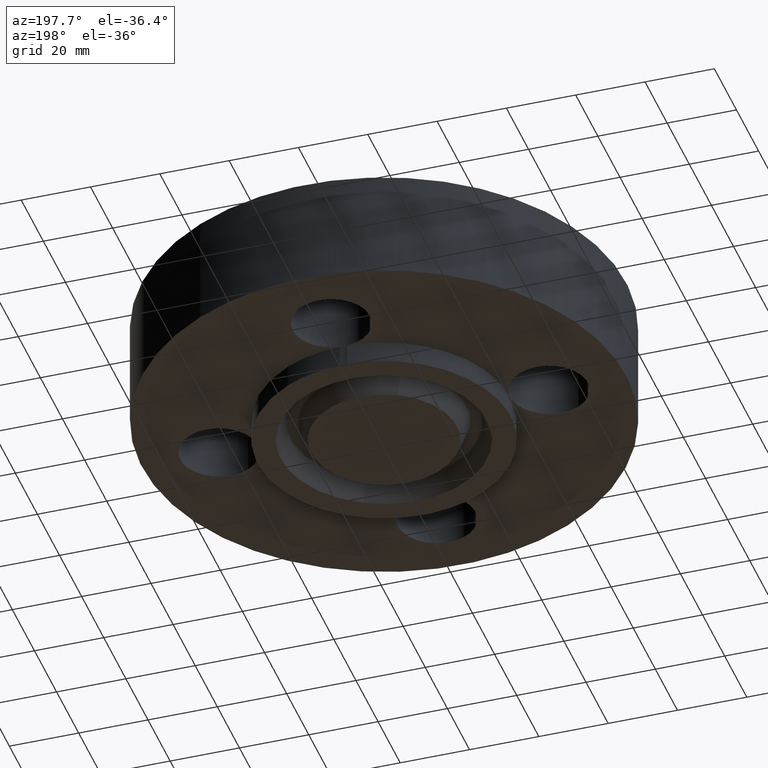
[diagram: clean part render]
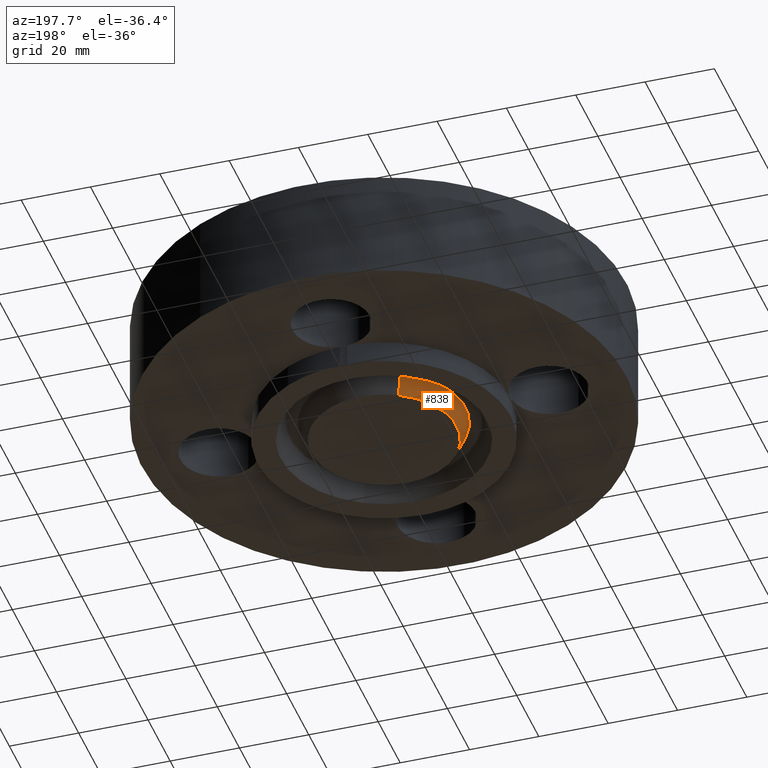
[diagram: same view with one face highlighted and labeled with its STEP entity id]
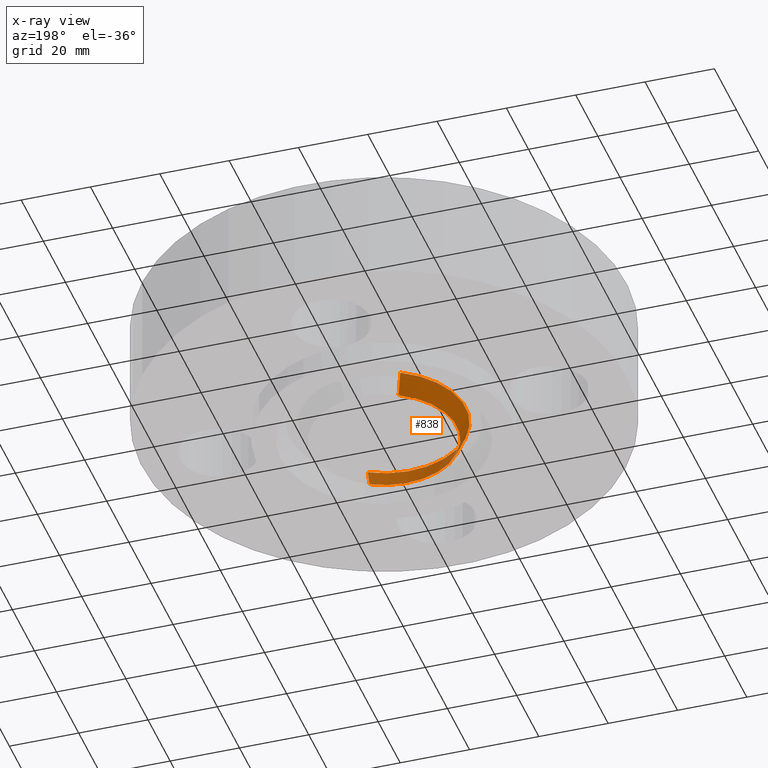
[diagram: x-ray of the same camera — body ghosted, the highlighted face saturated]
A machine part, auxiliary view. The second image highlights one B-rep face of the part: STEP entity #838.
The next image is the same camera in x-ray: the body ghosted, the highlighted face saturated — about 0% of this face is hidden behind the body in this view.
In plain terms, the highlighted conical surface has half-angle 23 deg.
Its self-contained STEP definition (entity closure, byte-faithful):
#51=AXIS2_PLACEMENT_3D('Circle Axis2P3D',#49,#50,$) ;
#800=AXIS2_PLACEMENT_3D('Circle Axis2P3D',#798,#799,$) ;
#813=AXIS2_PLACEMENT_3D('Cone Axis2P3D',#810,#811,#812) ;
#44=CARTESIAN_POINT('Vertex',(-0.396964345966,0.726638361248,-0.250000000001)) ;
#46=CARTESIAN_POINT('Vertex',(0.396964345966,-0.726638361248,-0.250000000001)) ;
#49=CARTESIAN_POINT('Axis2P3D Location',(3.49676543189E-016,-3.49676543189E-017,-0.250000000001)) ;
#776=CARTESIAN_POINT('Vertex',(0.443996713314,-0.812730532203,-0.0188873350169)) ;
#783=CARTESIAN_POINT('Vertex',(-0.443996713314,0.812730532203,-0.0188873350169)) ;
#798=CARTESIAN_POINT('Axis2P3D Location',(0.,0.,-0.0188873350169)) ;
#810=CARTESIAN_POINT('Axis2P3D Location',(0.,0.,-0.310000000001)) ;
#815=CARTESIAN_POINT('Line Origine',(-0.42048052964,0.769684446725,-0.134443667509)) ;
#820=CARTESIAN_POINT('Line Origine',(0.42048052964,-0.769684446725,-0.134443667509)) ;
#50=DIRECTION('Axis2P3D Direction',(0.,0.,-0.0393700787402)) ;
#799=DIRECTION('Axis2P3D Direction',(0.,0.,0.0393700787402)) ;
#811=DIRECTION('Axis2P3D Direction',(0.,0.,0.0393700787402)) ;
#812=DIRECTION('Axis2P3D XDirection',(-0.0188750212049,0.0345504945626,0.)) ;
#816=DIRECTION('Vector Direction',(-0.00737505833565,0.0134999537303,0.0362403485611)) ;
#821=DIRECTION('Vector Direction',(0.00737505833565,-0.0134999537303,0.0362403485611)) ;
#817=VECTOR('Line Direction',#816,0.0393700787402) ;
#822=VECTOR('Line Direction',#821,0.0393700787402) ;
#833=ORIENTED_EDGE('',*,*,#824,.F.) ;
#834=ORIENTED_EDGE('',*,*,#802,.F.) ;
#835=ORIENTED_EDGE('',*,*,#819,.T.) ;
#836=ORIENTED_EDGE('',*,*,#53,.F.) ;
#838=ADVANCED_FACE('PartBody',(#837),#814,.T.) ;
#52=CIRCLE('generated circle',#51,0.828000000003) ;
#801=CIRCLE('generated circle',#800,0.926101505996) ;
#814=CONICAL_SURFACE('Cone',#813,0.802531511031,0.401425727959) ;
#53=EDGE_CURVE('',#47,#45,#52,.T.) ;
#802=EDGE_CURVE('',#784,#777,#801,.T.) ;
#819=EDGE_CURVE('',#784,#45,#818,.F.) ;
#824=EDGE_CURVE('',#777,#47,#823,.F.) ;
#832=EDGE_LOOP('',(#833,#834,#835,#836)) ;
#837=FACE_OUTER_BOUND('',#832,.T.) ;
#818=LINE('Line',#815,#817) ;
#823=LINE('Line',#820,#822) ;
#45=VERTEX_POINT('',#44) ;
#47=VERTEX_POINT('',#46) ;
#777=VERTEX_POINT('',#776) ;
#784=VERTEX_POINT('',#783) ;